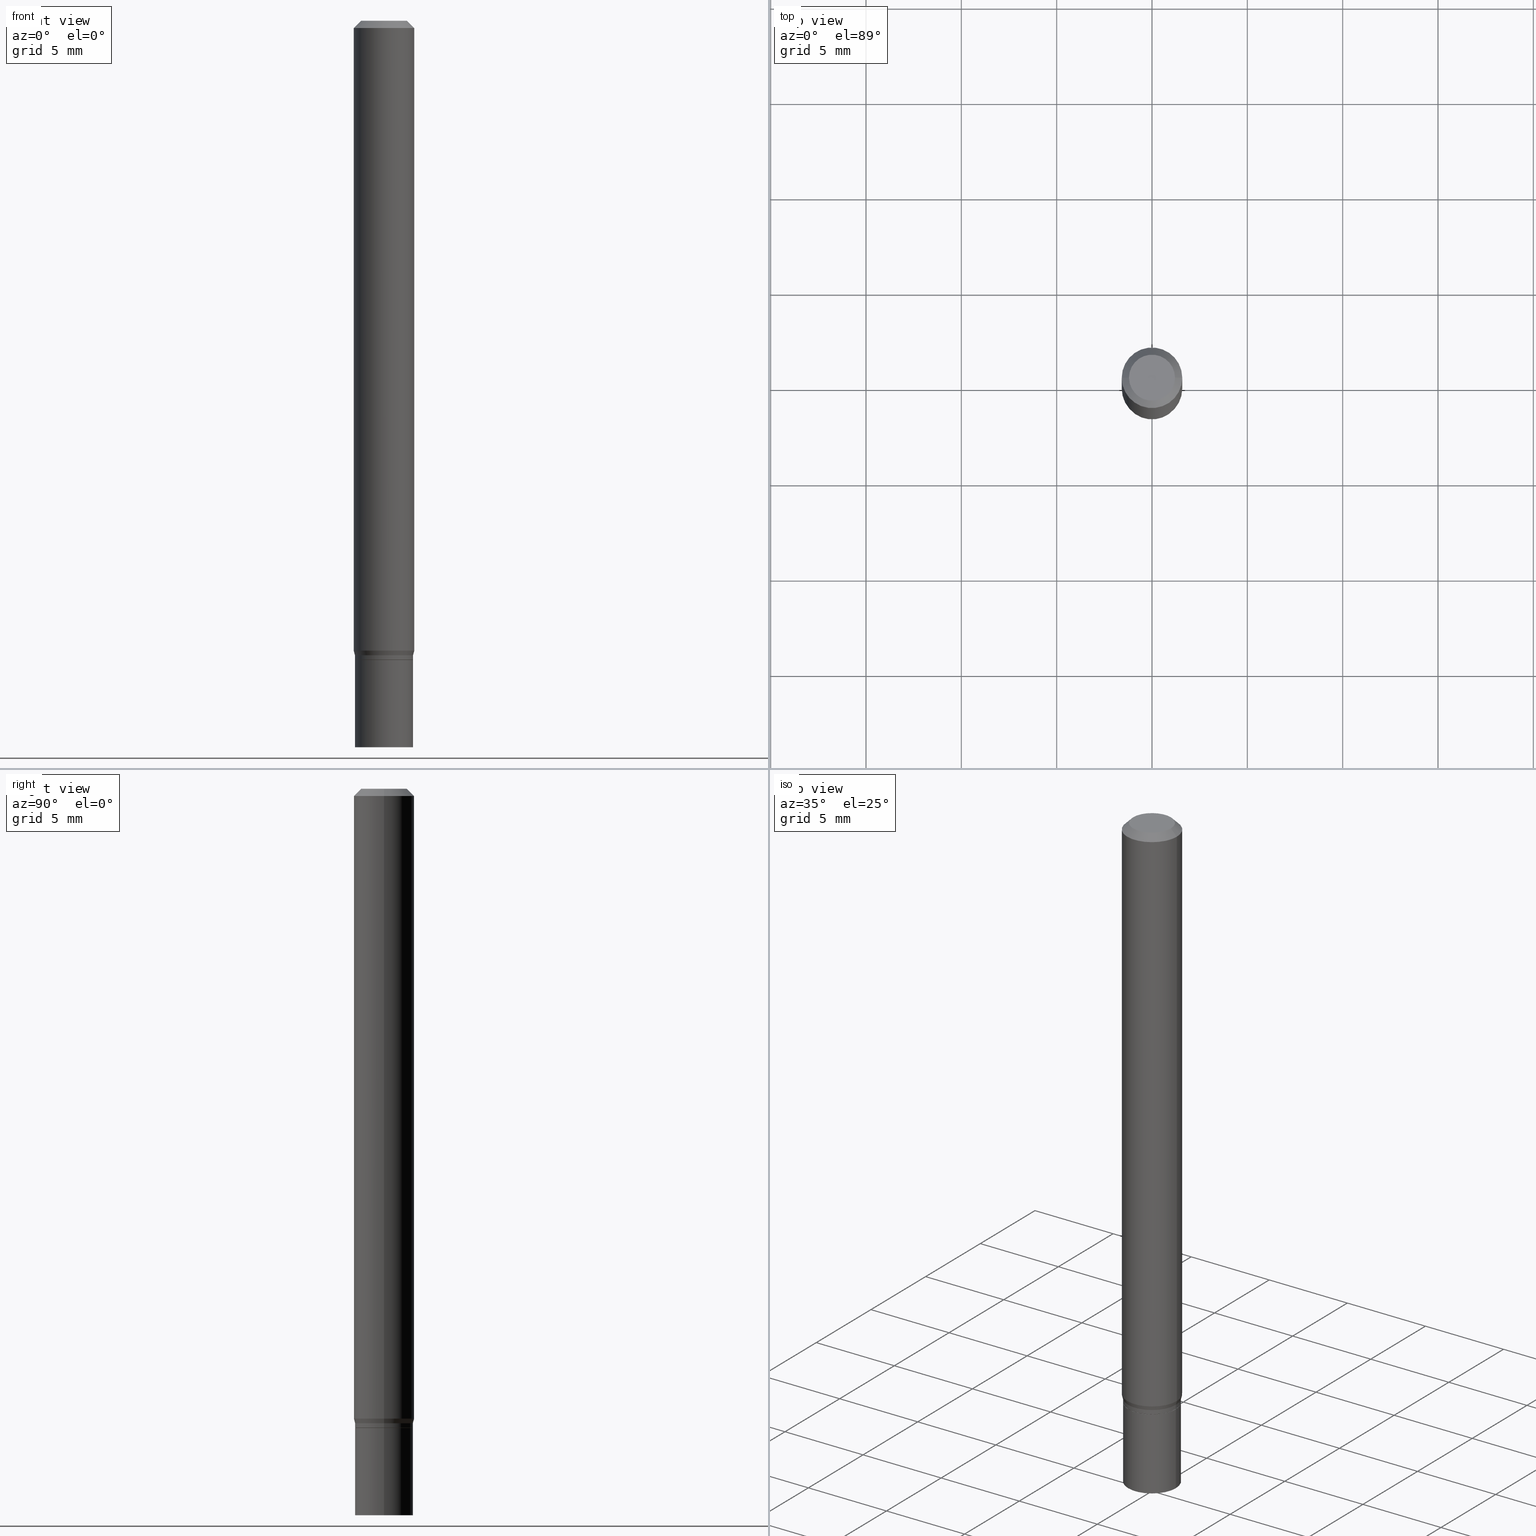
[diagram: canonical four-view strip — front | top / right | iso, engineering-drawing reading convention]
A machine part, canonical four-view strip (front | top / right | iso — engineering-drawing reading convention). The complete STEP part file that produces these views, byte-faithful:
ISO-10303-21;
HEADER;
FILE_DESCRIPTION (( 'STEP AP203' ),
    '1' );
FILE_NAME ('01155.STEP',
    '2024-03-19T23:27:22',
    ( '' ),
    ( '' ),
    'SwSTEP 2.0',
    'SolidWorks 2023',
    '' );
FILE_SCHEMA (( 'CONFIG_CONTROL_DESIGN' ));
ENDSEC;

DATA;
#1 = DATE_AND_TIME ( #244, #356 ) ;
#2 = VERTEX_POINT ( 'NONE', #66 ) ;
#3 = CARTESIAN_POINT ( 'NONE',  ( 3.668203209277705088E-31, -5.237222008264718399E-17, -0.01499999999999999944 ) ) ;
#4 = CARTESIAN_POINT ( 'NONE',  ( 3.203564136102529457E-29, -4.573840553884521577E-15, -1.310000000000000275 ) ) ;
#5 = VECTOR ( 'NONE', #364, 39.37007874015748143 ) ;
#6 = ADVANCED_FACE ( 'NONE', ( #215 ), #238, .T. ) ;
#7 = DIRECTION ( 'NONE',  ( 2.445468806185136597E-29, -3.491481338843145583E-15, -1.000000000000000000 ) ) ;
#8 = CARTESIAN_POINT ( 'NONE',  ( 0.000000000000000000, 0.000000000000000000, 0.000000000000000000 ) ) ;
#9 = FACE_OUTER_BOUND ( 'NONE', #414, .T. ) ;
#10 = CIRCLE ( 'NONE', #137, 0.05999999999999999778 ) ;
#11 = CONICAL_SURFACE ( 'NONE', #369, 0.06000000000000018513, 0.2617993877991257601 ) ;
#12 = CARTESIAN_POINT ( 'NONE',  ( 0.05949999999999999734, -5.024241646595285275E-15, -1.320000000000000062 ) ) ;
#13 = ORIENTED_EDGE ( 'NONE', *, *, #353, .F. ) ;
#14 = DIRECTION ( 'NONE',  ( 1.000000000000000000, -6.982962677686267499E-15, 4.852736867747366768E-29 ) ) ;
#15 = EDGE_CURVE ( 'NONE', #50, #205, #10, .T. ) ;
#16 = EDGE_LOOP ( 'NONE', ( #47, #343, #194, #451 ) ) ;
#17 =( CONVERSION_BASED_UNIT ( 'INCH', #118 ) LENGTH_UNIT ( ) NAMED_UNIT ( #281 ) );
#18 = ORIENTED_EDGE ( 'NONE', *, *, #254, .T. ) ;
#19 = DIRECTION ( 'NONE',  ( 1.000000000000000000, -6.982962677686262766E-15, 0.000000000000000000 ) ) ;
#20 = VERTEX_POINT ( 'NONE', #283 ) ;
#21 = DIRECTION ( 'NONE',  ( -2.445468806185136597E-29, 3.491481338843145583E-15, 1.000000000000000000 ) ) ;
#22 = ORIENTED_EDGE ( 'NONE', *, *, #315, .T. ) ;
#23 = ORIENTED_EDGE ( 'NONE', *, *, #15, .F. ) ;
#24 = CIRCLE ( 'NONE', #443, 0.06250000000000000000 ) ;
#25 = APPROVAL_STATUS ( 'not_yet_approved' ) ;
#26 = APPROVAL_PERSON_ORGANIZATION ( #63, #306, #242 ) ;
#27 = DIRECTION ( 'NONE',  ( -2.445468806185136597E-29, 3.491481338843145583E-15, 1.000000000000000000 ) ) ;
#28 = DIRECTION ( 'NONE',  ( 1.000000000000000000, -6.982962677686259611E-15, 0.000000000000000000 ) ) ;
#29 = APPROVAL_ROLE ( '' ) ;
#30 = CARTESIAN_POINT ( 'NONE',  ( 0.000000000000000000, 0.000000000000000000, 0.000000000000000000 ) ) ;
#31 = APPROVAL_DATE_TIME ( #1, #306 ) ;
#32 = AXIS2_PLACEMENT_3D ( 'NONE', #4, #110, #108 ) ;
#33 = LINE ( 'NONE', #93, #201 ) ;
#34 = CARTESIAN_POINT ( 'NONE',  ( -0.06000000000000018513, -4.147514912428460298E-15, -1.310000000000000275 ) ) ;
#35 = EDGE_CURVE ( 'NONE', #91, #421, #399, .T. ) ;
#36 = CARTESIAN_POINT ( 'NONE',  ( 3.228018824164380442E-29, -4.608755367272952437E-15, -1.320000000000000062 ) ) ;
#37 = ORIENTED_EDGE ( 'NONE', *, *, #320, .T. ) ;
#38 = DIRECTION ( 'NONE',  ( -2.438088387897960049E-29, 3.491481338843145188E-15, 1.000000000000000000 ) ) ;
#39 = AXIS2_PLACEMENT_3D ( 'NONE', #8, #147, #144 ) ;
#40 = LOCAL_TIME ( 19, 27, 22.00000000000000000, #351 ) ;
#41 = CARTESIAN_POINT ( 'NONE',  ( 3.180747601520009606E-29, -4.541264589508918231E-15, -1.300669872981077946 ) ) ;
#42 = EDGE_CURVE ( 'NONE', #159, #425, #243, .T. ) ;
#43 = DIRECTION ( 'NONE',  ( 1.000000000000000000, -6.982962677686262766E-15, 0.000000000000000000 ) ) ;
#44 = DIRECTION ( 'NONE',  ( -2.445468806185136597E-29, 3.491481338843145583E-15, 1.000000000000000000 ) ) ;
#45 = ADVANCED_FACE ( 'NONE', ( #390 ), #70, .T. ) ;
#46 = LINE ( 'NONE', #239, #222 ) ;
#47 = ORIENTED_EDGE ( 'NONE', *, *, #48, .F. ) ;
#48 = EDGE_CURVE ( 'NONE', #88, #159, #33, .T. ) ;
#49 = CARTESIAN_POINT ( 'NONE',  ( 3.316907271900976096E-16, 0.04749999999999999362, -2.653275547260257586E-16 ) ) ;
#50 = VERTEX_POINT ( 'NONE', #64 ) ;
#51 = CARTESIAN_POINT ( 'NONE',  ( 4.189777606612082375E-16, 0.05999999999999539035, -1.320000000000000506 ) ) ;
#52 = ORIENTED_EDGE ( 'NONE', *, *, #180, .F. ) ;
#53 = CLOSED_SHELL ( 'NONE', ( #119, #219, #141, #389 ) ) ;
#54 = ORGANIZATION ( 'UNSPECIFIED', 'UNSPECIFIED', '' ) ;
#55 = DIRECTION ( 'NONE',  ( -0.7071067811865522357, 2.468850131082306364E-15, -0.7071067811865427988 ) ) ;
#56 = ORIENTED_EDGE ( 'NONE', *, *, #164, .F. ) ;
#57 = PERSON_AND_ORGANIZATION ( #100, #54 ) ;
#58 = ORIENTED_EDGE ( 'NONE', *, *, #231, .F. ) ;
#59 = PERSON_AND_ORGANIZATION ( #100, #54 ) ;
#60 = LINE ( 'NONE', #316, #193 ) ;
#61 = AXIS2_PLACEMENT_3D ( 'NONE', #292, #332, #442 ) ;
#62 = ADVANCED_FACE ( 'NONE', ( #106 ), #287, .T. ) ;
#63 = PERSON_AND_ORGANIZATION ( #100, #54 ) ;
#64 = CARTESIAN_POINT ( 'NONE',  ( -0.05999999999999999778, -4.496663046312775211E-15, -1.320000000000000062 ) ) ;
#65 = APPROVAL_DATE_TIME ( #391, #269 ) ;
#66 = CARTESIAN_POINT ( 'NONE',  ( 0.06000000000000018513, -4.992818314545699000E-15, -1.310000000000000275 ) ) ;
#67 = COORDINATED_UNIVERSAL_TIME_OFFSET ( 5, 0, .BEHIND. ) ;
#68 = DIRECTION ( 'NONE',  ( -2.445468806185136597E-29, 3.491481338843145583E-15, 1.000000000000000000 ) ) ;
#69 = AXIS2_PLACEMENT_3D ( 'NONE', #79, #223, #370 ) ;
#70 = CYLINDRICAL_SURFACE ( 'NONE', #407, 0.06000000000000006023 ) ;
#71 = AXIS2_PLACEMENT_3D ( 'NONE', #90, #21, #422 ) ;
#72 = EDGE_CURVE ( 'NONE', #184, #50, #251, .T. ) ;
#73 = CARTESIAN_POINT ( 'NONE',  ( 3.226796089761288762E-29, -4.607009626603530934E-15, -1.319500000000000117 ) ) ;
#74 = DIRECTION ( 'NONE',  ( -2.445468806185136877E-29, 3.491481338843145188E-15, 1.000000000000000000 ) ) ;
#75 = LINE ( 'NONE', #440, #97 ) ;
#76 = AXIS2_PLACEMENT_3D ( 'NONE', #459, #27, #170 ) ;
#77 = FACE_OUTER_BOUND ( 'NONE', #84, .T. ) ;
#78 = EDGE_LOOP ( 'NONE', ( #268, #378, #345, #461 ) ) ;
#79 = CARTESIAN_POINT ( 'NONE',  ( 3.668203209277704895E-29, -5.237222008264718177E-15, -1.500000000000000222 ) ) ;
#80 = DIRECTION ( 'NONE',  ( -2.445468806185136597E-29, 3.491481338843145583E-15, 1.000000000000000000 ) ) ;
#81 = ORIENTED_EDGE ( 'NONE', *, *, #241, .F. ) ;
#82 = CIRCLE ( 'NONE', #230, 0.05949999999999999734 ) ;
#83 = CARTESIAN_POINT ( 'NONE',  ( 0.000000000000000000, 0.000000000000000000, 0.000000000000000000 ) ) ;
#84 = EDGE_LOOP ( 'NONE', ( #302, #348, #295, #52 ) ) ;
#85 = EDGE_CURVE ( 'NONE', #122, #88, #363, .T. ) ;
#86 = ORIENTED_EDGE ( 'NONE', *, *, #445, .F. ) ;
#87 = CARTESIAN_POINT ( 'NONE',  ( 3.203564136102529457E-29, -4.573840553884521577E-15, -1.310000000000000275 ) ) ;
#88 = VERTEX_POINT ( 'NONE', #133 ) ;
#89 = CIRCLE ( 'NONE', #146, 0.05949999999999999734 ) ;
#90 = CARTESIAN_POINT ( 'NONE',  ( 3.668203209277704895E-29, -5.237222008264718177E-15, -1.500000000000000222 ) ) ;
#91 = VERTEX_POINT ( 'NONE', #463 ) ;
#92 = DIRECTION ( 'NONE',  ( 0.000000000000000000, 0.000000000000000000, 1.000000000000000000 ) ) ;
#93 = CARTESIAN_POINT ( 'NONE',  ( -0.06000000000000006023, 4.263256414560605395E-16, -2.951361054152946216E-30 ) ) ;
#94 = APPROVAL ( #359, 'UNSPECIFIED' ) ;
#95 = EDGE_CURVE ( 'NONE', #425, #293, #107, .T. ) ;
#96 = DIRECTION ( 'NONE',  ( 1.000000000000000000, -6.982962677686267499E-15, 4.876176775795936353E-29 ) ) ;
#97 = VECTOR ( 'NONE', #257, 39.37007874015747433 ) ;
#98 = COORDINATED_UNIVERSAL_TIME_OFFSET ( 5, 0, .BEHIND. ) ;
#99 = DIRECTION ( 'NONE',  ( -2.445468806185136597E-29, 3.491481338843145583E-15, 1.000000000000000000 ) ) ;
#100 = PERSON ( 'UNSPECIFIED', 'UNSPECIFIED', 'UNSPECIFIED', ('UNSPECIFIED'), ('UNSPECIFIED'), ('UNSPECIFIED') ) ;
#101 = CC_DESIGN_PERSON_AND_ORGANIZATION_ASSIGNMENT ( #314, #464, ( #324 ) ) ;
#102 = APPROVAL_DATE_TIME ( #432, #94 ) ;
#103 = CARTESIAN_POINT ( 'NONE',  ( 0.000000000000000000, 0.000000000000000000, 0.000000000000000000 ) ) ;
#104 = SHAPE_DEFINITION_REPRESENTATION ( #191, #211 ) ;
#105 = EDGE_CURVE ( 'NONE', #2, #159, #312, .T. ) ;
#106 = FACE_OUTER_BOUND ( 'NONE', #355, .T. ) ;
#107 = CIRCLE ( 'NONE', #449, 0.06250000000000000000 ) ;
#108 = DIRECTION ( 'NONE',  ( 1.000000000000000000, -6.982962677686262766E-15, 0.000000000000000000 ) ) ;
#109 = LOCAL_TIME ( 19, 27, 22.00000000000000000, #208 ) ;
#110 = DIRECTION ( 'NONE',  ( -2.445468806185136597E-29, 3.491481338843145583E-15, 1.000000000000000000 ) ) ;
#111 = MANIFOLD_SOLID_BREP ( 'Body-Move/Copy2[2]', #346 ) ;
#112 = DIRECTION ( 'NONE',  ( 1.000000000000000000, -6.982962677686259611E-15, 0.000000000000000000 ) ) ;
#113 = ORIENTED_EDGE ( 'NONE', *, *, #95, .F. ) ;
#114 = EDGE_CURVE ( 'NONE', #122, #2, #60, .T. ) ;
#115 = DIRECTION ( 'NONE',  ( 1.000000000000000000, -6.982962677686261189E-15, 0.000000000000000000 ) ) ;
#116 = AXIS2_PLACEMENT_3D ( 'NONE', #371, #185, #112 ) ;
#117 = CARTESIAN_POINT ( 'NONE',  ( 0.000000000000000000, 0.000000000000000000, 0.000000000000000000 ) ) ;
#118 = LENGTH_MEASURE_WITH_UNIT ( LENGTH_MEASURE( 0.02539999999999999897 ), #236 );
#119 = ADVANCED_FACE ( 'NONE', ( #279 ), #360, .T. ) ;
#120 = ORIENTED_EDGE ( 'NONE', *, *, #72, .T. ) ;
#121 = DIRECTION ( 'NONE',  ( 1.000000000000000000, -6.982962677686259611E-15, 0.000000000000000000 ) ) ;
#122 = VERTEX_POINT ( 'NONE', #172 ) ;
#123 = VECTOR ( 'NONE', #225, 39.37007874015748143 ) ;
#124 = ORIENTED_EDGE ( 'NONE', *, *, #255, .F. ) ;
#125 = VERTEX_POINT ( 'NONE', #136 ) ;
#126 = ADVANCED_FACE ( 'NONE', ( #325 ), #323, .T. ) ;
#127 = ADVANCED_FACE ( 'NONE', ( #77 ), #336, .T. ) ;
#128 = FACE_OUTER_BOUND ( 'NONE', #78, .T. ) ;
#129 = ORIENTED_EDGE ( 'NONE', *, *, #105, .F. ) ;
#130 = CONICAL_SURFACE ( 'NONE', #167, 0.06250000000000000000, 0.7853981633974549403 ) ;
#131 = LOCAL_TIME ( 19, 27, 22.00000000000000000, #210 ) ;
#132 = ADVANCED_FACE ( 'NONE', ( #256 ), #130, .T. ) ;
#133 = CARTESIAN_POINT ( 'NONE',  ( -0.05999999999999992145, -4.180683985147472021E-15, -1.319500000000000117 ) ) ;
#134 = DIRECTION ( 'NONE',  ( -2.445468806185136597E-29, 3.491481338843145583E-15, 1.000000000000000000 ) ) ;
#135 = CALENDAR_DATE ( 2024, 19, 3 ) ;
#136 = CARTESIAN_POINT ( 'NONE',  ( -0.06250000000000000000, -1.852729194945719842E-15, -0.01499999999999999944 ) ) ;
#137 = AXIS2_PLACEMENT_3D ( 'NONE', #207, #427, #322 ) ;
#138 = AXIS2_PLACEMENT_3D ( 'NONE', #192, #80, #14 ) ;
#139 = CALENDAR_DATE ( 2024, 19, 3 ) ;
#140 = CARTESIAN_POINT ( 'NONE',  ( 3.228018824164380442E-29, -4.608755367272952437E-15, -1.320000000000000062 ) ) ;
#141 = ADVANCED_FACE ( 'NONE', ( #150 ), #188, .T. ) ;
#142 = APPROVAL_ROLE ( '' ) ;
#143 = ORIENTED_EDGE ( 'NONE', *, *, #164, .T. ) ;
#144 = DIRECTION ( 'NONE',  ( 1.000000000000000000, -6.982962677686266711E-15, 4.876176775795935793E-29 ) ) ;
#145 = VECTOR ( 'NONE', #401, 39.37007874015748143 ) ;
#146 = AXIS2_PLACEMENT_3D ( 'NONE', #36, #183, #291 ) ;
#147 = DIRECTION ( 'NONE',  ( -2.445468806185136597E-29, 3.491481338843145583E-15, 1.000000000000000000 ) ) ;
#148 = CC_DESIGN_SECURITY_CLASSIFICATION ( #324, ( #331 ) ) ;
#149 = EDGE_CURVE ( 'NONE', #20, #125, #439, .T. ) ;
#150 = FACE_OUTER_BOUND ( 'NONE', #305, .T. ) ;
#151 = EDGE_CURVE ( 'NONE', #293, #425, #24, .T. ) ;
#152 = CARTESIAN_POINT ( 'NONE',  ( 0.05949999999999999734, -5.024241646595285275E-15, -1.320000000000000062 ) ) ;
#153 = ORIENTED_EDGE ( 'NONE', *, *, #165, .F. ) ;
#154 = PLANE ( 'NONE',  #429 ) ;
#155 = LINE ( 'NONE', #299, #284 ) ;
#156 = CARTESIAN_POINT ( 'NONE',  ( 3.668203209277705088E-31, -5.237222008264718399E-17, -0.01499999999999999944 ) ) ;
#157 = ORIENTED_EDGE ( 'NONE', *, *, #341, .T. ) ;
#158 = DIRECTION ( 'NONE',  ( -1.000000000000000000, 6.982962677686265922E-15, -4.876176775795935793E-29 ) ) ;
#159 = VERTEX_POINT ( 'NONE', #334 ) ;
#160 = VECTOR ( 'NONE', #74, 39.37007874015748143 ) ;
#161 = EDGE_LOOP ( 'NONE', ( #260, #157 ) ) ;
#162 = CARTESIAN_POINT ( 'NONE',  ( 3.203564136102529457E-29, -4.573840553884521577E-15, -1.310000000000000275 ) ) ;
#163 = VERTEX_POINT ( 'NONE', #404 ) ;
#164 = EDGE_CURVE ( 'NONE', #293, #20, #365, .T. ) ;
#165 = EDGE_CURVE ( 'NONE', #425, #125, #405, .T. ) ;
#166 = ORIENTED_EDGE ( 'NONE', *, *, #15, .T. ) ;
#167 = AXIS2_PLACEMENT_3D ( 'NONE', #3, #7, #220 ) ;
#168 =( GEOMETRIC_REPRESENTATION_CONTEXT ( 3 ) GLOBAL_UNCERTAINTY_ASSIGNED_CONTEXT ( ( #434 ) ) GLOBAL_UNIT_ASSIGNED_CONTEXT ( ( #17, #420, #426 ) ) REPRESENTATION_CONTEXT ( 'NONE', 'WORKASPACE' ) );
#169 = CALENDAR_DATE ( 2024, 19, 3 ) ;
#170 = DIRECTION ( 'NONE',  ( 1.000000000000000000, -6.982962677686267499E-15, 4.852736867747366768E-29 ) ) ;
#171 = SECURITY_CLASSIFICATION_LEVEL ( 'unclassified' ) ;
#172 = CARTESIAN_POINT ( 'NONE',  ( 0.05999999999999992145, -5.025987387264705990E-15, -1.319500000000000117 ) ) ;
#173 = EDGE_CURVE ( 'NONE', #88, #122, #330, .T. ) ;
#174 = DIRECTION ( 'NONE',  ( 1.000000000000000000, 0.000000000000000000, 0.000000000000000000 ) ) ;
#175 = DIRECTION ( 'NONE',  ( -2.445468806185136877E-29, 3.491481338843145188E-15, 1.000000000000000000 ) ) ;
#176 = ADVANCED_FACE ( 'NONE', ( #298 ), #288, .T. ) ;
#177 = CIRCLE ( 'NONE', #195, 0.06000000000000018513 ) ;
#178 = CALENDAR_DATE ( 2024, 19, 3 ) ;
#179 = DIRECTION ( 'NONE',  ( 1.000000000000000000, -6.982962677686266711E-15, 4.876176775795935232E-29 ) ) ;
#180 = EDGE_CURVE ( 'NONE', #436, #122, #294, .T. ) ;
#181 = CARTESIAN_POINT ( 'NONE',  ( -0.05999999999999999778, 4.263256414560600957E-16, -2.951361054152943413E-30 ) ) ;
#182 = CC_DESIGN_PERSON_AND_ORGANIZATION_ASSIGNMENT ( #357, #460, ( #331 ) ) ;
#183 = DIRECTION ( 'NONE',  ( -2.445468806185136597E-29, 3.491481338843145583E-15, 1.000000000000000000 ) ) ;
#184 = VERTEX_POINT ( 'NONE', #373 ) ;
#185 = DIRECTION ( 'NONE',  ( -2.445468806185136597E-29, 3.491481338843145583E-15, 1.000000000000000000 ) ) ;
#186 = ORIENTED_EDGE ( 'NONE', *, *, #241, .T. ) ;
#187 = PRODUCT ( '01155', '01155', '', ( #250 ) ) ;
#188 = CYLINDRICAL_SURFACE ( 'NONE', #263, 0.05999999999999999778 ) ;
#189 = ORIENTED_EDGE ( 'NONE', *, *, #326, .T. ) ;
#190 = DIRECTION ( 'NONE',  ( -2.445468806185136597E-29, 3.491481338843145583E-15, 1.000000000000000000 ) ) ;
#191 = PRODUCT_DEFINITION_SHAPE ( 'NONE', 'NONE',  #437 ) ;
#192 = CARTESIAN_POINT ( 'NONE',  ( 4.865611903635008365E-45, -6.946804277620623666E-31, -1.989643822619527736E-16 ) ) ;
#193 = VECTOR ( 'NONE', #175, 39.37007874015748143 ) ;
#194 = ORIENTED_EDGE ( 'NONE', *, *, #114, .T. ) ;
#195 = AXIS2_PLACEMENT_3D ( 'NONE', #162, #379, #342 ) ;
#196 = CARTESIAN_POINT ( 'NONE',  ( -0.05949999999999999734, -4.183333212321582433E-15, -1.320000000000000062 ) ) ;
#197 = ORIENTED_EDGE ( 'NONE', *, *, #326, .F. ) ;
#198 = ORIENTED_EDGE ( 'NONE', *, *, #149, .T. ) ;
#199 = DIRECTION ( 'NONE',  ( -2.445468806185136597E-29, 3.491481338843145583E-15, 1.000000000000000000 ) ) ;
#200 = ORIENTED_EDGE ( 'NONE', *, *, #353, .T. ) ;
#201 = VECTOR ( 'NONE', #319, 39.37007874015748143 ) ;
#202 = CC_DESIGN_APPROVAL ( #94, ( #324 ) ) ;
#203 = FACE_OUTER_BOUND ( 'NONE', #161, .T. ) ;
#204 = ORIENTED_EDGE ( 'NONE', *, *, #151, .T. ) ;
#205 = VERTEX_POINT ( 'NONE', #446 ) ;
#206 = DATE_AND_TIME ( #135, #40 ) ;
#207 = CARTESIAN_POINT ( 'NONE',  ( 3.228018824164380442E-29, -4.608755367272952437E-15, -1.320000000000000062 ) ) ;
#208 = COORDINATED_UNIVERSAL_TIME_OFFSET ( 5, 0, .BEHIND. ) ;
#209 = DIRECTION ( 'NONE',  ( -2.445468806185136597E-29, 3.491481338843145583E-15, 1.000000000000000000 ) ) ;
#210 = COORDINATED_UNIVERSAL_TIME_OFFSET ( 5, 0, .BEHIND. ) ;
#211 = ADVANCED_BREP_SHAPE_REPRESENTATION ( '01155', ( #266, #111, #313 ), #168 ) ;
#212 = CARTESIAN_POINT ( 'NONE',  ( 3.203564136102529457E-29, -4.573840553884521577E-15, -1.310000000000000275 ) ) ;
#213 = DIRECTION ( 'NONE',  ( -1.000000000000000000, 6.982962677686266711E-15, 0.000000000000000000 ) ) ;
#214 = AXIS2_PLACEMENT_3D ( 'NONE', #83, #234, #304 ) ;
#215 = FACE_OUTER_BOUND ( 'NONE', #352, .T. ) ;
#216 = APPLICATION_CONTEXT ( 'configuration controlled 3d designs of mechanical parts and assemblies' ) ;
#217 = EDGE_CURVE ( 'NONE', #163, #205, #327, .T. ) ;
#218 = DIRECTION ( 'NONE',  ( 1.000000000000000000, -6.982962677686267499E-15, 4.876176775795936353E-29 ) ) ;
#219 = ADVANCED_FACE ( 'NONE', ( #9 ), #154, .F. ) ;
#220 = DIRECTION ( 'NONE',  ( -1.000000000000000000, 6.982962677686266711E-15, 0.000000000000000000 ) ) ;
#221 = AXIS2_PLACEMENT_3D ( 'NONE', #227, #375, #418 ) ;
#222 = VECTOR ( 'NONE', #264, 39.37007874015748143 ) ;
#223 = DIRECTION ( 'NONE',  ( -2.445468806185136597E-29, 3.491481338843145583E-15, 1.000000000000000000 ) ) ;
#224 = ADVANCED_FACE ( 'NONE', ( #261 ), #296, .T. ) ;
#225 = DIRECTION ( 'NONE',  ( -2.445468806185136877E-29, 3.491481338843145188E-15, 1.000000000000000000 ) ) ;
#226 = CARTESIAN_POINT ( 'NONE',  ( 0.06250000000000000000, -4.364351673553916694E-16, 3.047610484872459871E-30 ) ) ;
#227 = CARTESIAN_POINT ( 'NONE',  ( 3.228018824164380442E-29, -4.608755367272952437E-15, -1.320000000000000062 ) ) ;
#228 = AXIS2_PLACEMENT_3D ( 'NONE', #249, #397, #213 ) ;
#229 = ORIENTED_EDGE ( 'NONE', *, *, #85, .T. ) ;
#230 = AXIS2_PLACEMENT_3D ( 'NONE', #450, #454, #121 ) ;
#231 = EDGE_CURVE ( 'NONE', #271, #88, #441, .T. ) ;
#232 = FACE_OUTER_BOUND ( 'NONE', #411, .T. ) ;
#233 = EDGE_LOOP ( 'NONE', ( #333, #189, #198, #237 ) ) ;
#234 = DIRECTION ( 'NONE',  ( -2.445468806185136597E-29, 3.491481338843145583E-15, 1.000000000000000000 ) ) ;
#235 = ORIENTED_EDGE ( 'NONE', *, *, #42, .F. ) ;
#236 =( LENGTH_UNIT ( ) NAMED_UNIT ( * ) SI_UNIT ( $, .METRE. ) );
#237 = ORIENTED_EDGE ( 'NONE', *, *, #315, .F. ) ;
#238 = CONICAL_SURFACE ( 'NONE', #252, 0.05949999999999999734, 0.7853981633974739252 ) ;
#239 = CARTESIAN_POINT ( 'NONE',  ( 0.06250000000000000000, -4.811533449433679005E-16, -0.01499999999999999944 ) ) ;
#240 = EDGE_LOOP ( 'NONE', ( #229, #380, #129, #385 ) ) ;
#241 = EDGE_CURVE ( 'NONE', #271, #436, #89, .T. ) ;
#242 = APPROVAL_ROLE ( '' ) ;
#243 = LINE ( 'NONE', #34, #456 ) ;
#244 = CALENDAR_DATE ( 2024, 19, 3 ) ;
#245 = DIRECTION ( 'NONE',  ( 1.000000000000000000, -6.982962677686266711E-15, 4.876176775795935793E-29 ) ) ;
#246 = PERSON_AND_ORGANIZATION ( #100, #54 ) ;
#247 = CARTESIAN_POINT ( 'NONE',  ( 3.226796089761288762E-29, -4.607009626603530934E-15, -1.319500000000000117 ) ) ;
#248 = CARTESIAN_POINT ( 'NONE',  ( 0.000000000000000000, 0.000000000000000000, 0.000000000000000000 ) ) ;
#249 = CARTESIAN_POINT ( 'NONE',  ( 3.668203209277705088E-31, -5.237222008264718399E-17, -0.01499999999999999944 ) ) ;
#250 = MECHANICAL_CONTEXT ( 'NONE', #339, 'mechanical' ) ;
#251 = LINE ( 'NONE', #181, #5 ) ;
#252 = AXIS2_PLACEMENT_3D ( 'NONE', #140, #285, #28 ) ;
#253 = DIRECTION ( 'NONE',  ( -2.445468806185136877E-29, 3.491481338843145188E-15, 1.000000000000000000 ) ) ;
#254 = EDGE_CURVE ( 'NONE', #2, #293, #75, .T. ) ;
#255 = EDGE_CURVE ( 'NONE', #163, #184, #368, .T. ) ;
#256 = FACE_OUTER_BOUND ( 'NONE', #233, .T. ) ;
#257 = DIRECTION ( 'NONE',  ( 0.2588190451024979244, 1.565188264969808139E-15, 0.9659258262890745295 ) ) ;
#258 = AXIS2_PLACEMENT_3D ( 'NONE', #49, #307, #309 ) ;
#259 = DIRECTION ( 'NONE',  ( 0.7071067811865656694, -2.468850131082446387E-15, 0.7071067811865294761 ) ) ;
#260 = ORIENTED_EDGE ( 'NONE', *, *, #35, .T. ) ;
#261 = FACE_OUTER_BOUND ( 'NONE', #265, .T. ) ;
#262 = EDGE_LOOP ( 'NONE', ( #419, #120, #310, #453 ) ) ;
#263 = AXIS2_PLACEMENT_3D ( 'NONE', #117, #190, #218 ) ;
#264 = DIRECTION ( 'NONE',  ( 0.7071067811865522357, -7.319954787623271823E-15, -0.7071067811865427988 ) ) ;
#265 = EDGE_LOOP ( 'NONE', ( #235, #406, #18, #113 ) ) ;
#266 = MANIFOLD_SOLID_BREP ( 'Body-Move/Copy2[1]', #53 ) ;
#267 = DIRECTION ( 'NONE',  ( -2.445468806185136597E-29, 3.491481338843145583E-15, 1.000000000000000000 ) ) ;
#268 = ORIENTED_EDGE ( 'NONE', *, *, #105, .T. ) ;
#269 = APPROVAL ( #25, 'UNSPECIFIED' ) ;
#270 = PLANE ( 'NONE',  #408 ) ;
#271 = VERTEX_POINT ( 'NONE', #196 ) ;
#272 = CARTESIAN_POINT ( 'NONE',  ( 0.06250000000000000000, -4.977699756864309111E-15, -1.300669872981077946 ) ) ;
#273 = ORIENTED_EDGE ( 'NONE', *, *, #320, .F. ) ;
#274 = VECTOR ( 'NONE', #253, 39.37007874015748143 ) ;
#275 = LOCAL_TIME ( 19, 27, 22.00000000000000000, #67 ) ;
#276 = CC_DESIGN_PERSON_AND_ORGANIZATION_ASSIGNMENT ( #321, #462, ( #331 ) ) ;
#277 = DIRECTION ( 'NONE',  ( 1.000000000000000000, -6.982962677686262766E-15, 0.000000000000000000 ) ) ;
#278 = PERSON_AND_ORGANIZATION_ROLE ( 'creator' ) ;
#279 = FACE_OUTER_BOUND ( 'NONE', #262, .T. ) ;
#280 = ADVANCED_FACE ( 'NONE', ( #413 ), #424, .F. ) ;
#281 = DIMENSIONAL_EXPONENTS ( 1.000000000000000000, 0.000000000000000000, 0.000000000000000000, 0.000000000000000000, 0.000000000000000000, 0.000000000000000000, 0.000000000000000000 ) ;
#282 = DATE_TIME_ROLE ( 'classification_date' ) ;
#283 = CARTESIAN_POINT ( 'NONE',  ( 0.06250000000000000000, -4.888073874380388472E-16, -0.01499999999999999944 ) ) ;
#284 = VECTOR ( 'NONE', #55, 39.37007874015748143 ) ;
#285 = DIRECTION ( 'NONE',  ( -2.445468806185136597E-29, 3.491481338843145583E-15, 1.000000000000000000 ) ) ;
#286 = PERSON_AND_ORGANIZATION_ROLE ( 'design_owner' ) ;
#287 = CYLINDRICAL_SURFACE ( 'NONE', #416, 0.06250000000000000000 ) ;
#288 = CYLINDRICAL_SURFACE ( 'NONE', #39, 0.06250000000000000000 ) ;
#289 = AXIS2_PLACEMENT_3D ( 'NONE', #73, #335, #115 ) ;
#290 = CIRCLE ( 'NONE', #71, 0.05999999999999999778 ) ;
#291 = DIRECTION ( 'NONE',  ( 1.000000000000000000, -6.982962677686259611E-15, 0.000000000000000000 ) ) ;
#292 = CARTESIAN_POINT ( 'NONE',  ( 3.668203209277705088E-31, -5.237222008264718399E-17, -0.01499999999999999944 ) ) ;
#293 = VERTEX_POINT ( 'NONE', #272 ) ;
#294 = LINE ( 'NONE', #152, #303 ) ;
#295 = ORIENTED_EDGE ( 'NONE', *, *, #85, .F. ) ;
#296 = CONICAL_SURFACE ( 'NONE', #32, 0.06000000000000018513, 0.2617993877991257601 ) ;
#297 = APPROVAL_PERSON_ORGANIZATION ( #246, #94, #29 ) ;
#298 = FACE_OUTER_BOUND ( 'NONE', #387, .T. ) ;
#299 = CARTESIAN_POINT ( 'NONE',  ( -0.06250000000000000000, 3.840629472727444916E-16, -0.01499999999999999944 ) ) ;
#300 = ADVANCED_FACE ( 'NONE', ( #349 ), #382, .T. ) ;
#301 = CARTESIAN_POINT ( 'NONE',  ( 3.228018824164380442E-29, -4.608755367272952437E-15, -1.320000000000000062 ) ) ;
#302 = ORIENTED_EDGE ( 'NONE', *, *, #445, .T. ) ;
#303 = VECTOR ( 'NONE', #259, 39.37007874015748143 ) ;
#304 = DIRECTION ( 'NONE',  ( 1.000000000000000000, -6.982962677686266711E-15, 4.876176775795935232E-29 ) ) ;
#305 = EDGE_LOOP ( 'NONE', ( #430, #37, #455, #23 ) ) ;
#306 = APPROVAL ( #396, 'UNSPECIFIED' ) ;
#307 = DIRECTION ( 'NONE',  ( 2.438088387897960049E-29, -3.491481338843145188E-15, -1.000000000000000000 ) ) ;
#308 = ORIENTED_EDGE ( 'NONE', *, *, #173, .F. ) ;
#309 = DIRECTION ( 'NONE',  ( -1.000000000000000000, 6.982962677686265922E-15, -4.876176775795935793E-29 ) ) ;
#310 = ORIENTED_EDGE ( 'NONE', *, *, #403, .F. ) ;
#311 = EDGE_LOOP ( 'NONE', ( #86, #81 ) ) ;
#312 = CIRCLE ( 'NONE', #374, 0.06000000000000018513 ) ;
#313 = AXIS2_PLACEMENT_3D ( 'NONE', #248, #92, #174 ) ;
#314 = PERSON_AND_ORGANIZATION ( #100, #54 ) ;
#315 = EDGE_CURVE ( 'NONE', #91, #125, #155, .T. ) ;
#316 = CARTESIAN_POINT ( 'NONE',  ( 0.06000000000000006023, -4.189777606611764365E-16, 2.925706065477564208E-30 ) ) ;
#317 = DESIGN_CONTEXT ( 'detailed design', #216, 'design' ) ;
#318 = DATE_AND_TIME ( #178, #131 ) ;
#319 = DIRECTION ( 'NONE',  ( -2.445468806185136877E-29, 3.491481338843145188E-15, 1.000000000000000000 ) ) ;
#320 = EDGE_CURVE ( 'NONE', #184, #163, #290, .T. ) ;
#321 = PERSON_AND_ORGANIZATION ( #100, #54 ) ;
#322 = DIRECTION ( 'NONE',  ( 1.000000000000000000, -6.982962677686268288E-15, 0.000000000000000000 ) ) ;
#323 = CONICAL_SURFACE ( 'NONE', #228, 0.06250000000000000000, 0.7853981633974549403 ) ;
#324 = SECURITY_CLASSIFICATION ( '', '', #171 ) ;
#325 = FACE_OUTER_BOUND ( 'NONE', #402, .T. ) ;
#326 = EDGE_CURVE ( 'NONE', #421, #20, #46, .T. ) ;
#327 = LINE ( 'NONE', #410, #123 ) ;
#328 = CC_DESIGN_DATE_AND_TIME_ASSIGNMENT ( #318, #282, ( #324 ) ) ;
#329 = CARTESIAN_POINT ( 'NONE',  ( -0.06250000000000000000, 4.440892098500626162E-16, -3.074334431409316114E-30 ) ) ;
#330 = CIRCLE ( 'NONE', #289, 0.05999999999999992145 ) ;
#331 = PRODUCT_DEFINITION_FORMATION_WITH_SPECIFIED_SOURCE ( 'ANY', '', #187, .NOT_KNOWN. ) ;
#332 = DIRECTION ( 'NONE',  ( -2.445468806185136597E-29, 3.491481338843145583E-15, 1.000000000000000000 ) ) ;
#333 = ORIENTED_EDGE ( 'NONE', *, *, #341, .F. ) ;
#334 = CARTESIAN_POINT ( 'NONE',  ( -0.06000000000000018513, -4.122345146043657956E-15, -1.310000000000000275 ) ) ;
#335 = DIRECTION ( 'NONE',  ( -2.445468806185136597E-29, 3.491481338843145583E-15, 1.000000000000000000 ) ) ;
#336 = CONICAL_SURFACE ( 'NONE', #116, 0.05949999999999999734, 0.7853981633974739252 ) ;
#337 = CARTESIAN_POINT ( 'NONE',  ( -0.06250000000000000000, -4.097175379658855615E-15, -1.300669872981077946 ) ) ;
#338 = ORIENTED_EDGE ( 'NONE', *, *, #165, .T. ) ;
#339 = APPLICATION_CONTEXT ( 'configuration controlled 3d designs of mechanical parts and assemblies' ) ;
#340 = EDGE_CURVE ( 'NONE', #159, #2, #177, .T. ) ;
#341 = EDGE_CURVE ( 'NONE', #421, #91, #458, .T. ) ;
#342 = DIRECTION ( 'NONE',  ( 1.000000000000000000, -6.982962677686262766E-15, 0.000000000000000000 ) ) ;
#343 = ORIENTED_EDGE ( 'NONE', *, *, #173, .T. ) ;
#344 = PLANE ( 'NONE',  #258 ) ;
#345 = ORIENTED_EDGE ( 'NONE', *, *, #151, .F. ) ;
#346 = CLOSED_SHELL ( 'NONE', ( #45, #127, #132, #62, #457, #224, #176, #126, #384, #280, #6, #300 ) ) ;
#347 = DIRECTION ( 'NONE',  ( 1.000000000000000000, -6.982962677686266711E-15, 0.000000000000000000 ) ) ;
#348 = ORIENTED_EDGE ( 'NONE', *, *, #231, .T. ) ;
#349 = FACE_OUTER_BOUND ( 'NONE', #16, .T. ) ;
#350 = ORIENTED_EDGE ( 'NONE', *, *, #403, .T. ) ;
#351 = COORDINATED_UNIVERSAL_TIME_OFFSET ( 5, 0, .BEHIND. ) ;
#352 = EDGE_LOOP ( 'NONE', ( #58, #186, #367, #308 ) ) ;
#353 = EDGE_CURVE ( 'NONE', #125, #20, #393, .T. ) ;
#354 = PERSON_AND_ORGANIZATION ( #100, #54 ) ;
#355 = EDGE_LOOP ( 'NONE', ( #204, #338, #423, #56 ) ) ;
#356 = LOCAL_TIME ( 19, 27, 22.00000000000000000, #98 ) ;
#357 = PERSON_AND_ORGANIZATION ( #100, #54 ) ;
#358 = DIRECTION ( 'NONE',  ( -2.445468806185136597E-29, 3.491481338843145583E-15, 1.000000000000000000 ) ) ;
#359 = APPROVAL_STATUS ( 'not_yet_approved' ) ;
#360 = CYLINDRICAL_SURFACE ( 'NONE', #465, 0.05999999999999999778 ) ;
#361 = APPLICATION_PROTOCOL_DEFINITION ( 'international standard', 'config_control_design', 1994, #339 ) ;
#362 = DIRECTION ( 'NONE',  ( -0.2588190451024979244, 5.211531920934405891E-15, 0.9659258262890745295 ) ) ;
#363 = CIRCLE ( 'NONE', #381, 0.05999999999999992145 ) ;
#364 = DIRECTION ( 'NONE',  ( -2.445468806185136877E-29, 3.491481338843145188E-15, 1.000000000000000000 ) ) ;
#365 = LINE ( 'NONE', #226, #160 ) ;
#366 = CARTESIAN_POINT ( 'NONE',  ( 3.584916967085606921E-29, -5.356492647442320375E-15, -1.500000000000000222 ) ) ;
#367 = ORIENTED_EDGE ( 'NONE', *, *, #180, .T. ) ;
#368 = CIRCLE ( 'NONE', #69, 0.05999999999999999778 ) ;
#369 = AXIS2_PLACEMENT_3D ( 'NONE', #87, #377, #19 ) ;
#370 = DIRECTION ( 'NONE',  ( 1.000000000000000000, -6.982962677686268288E-15, 0.000000000000000000 ) ) ;
#371 = CARTESIAN_POINT ( 'NONE',  ( 3.228018824164380442E-29, -4.608755367272952437E-15, -1.320000000000000062 ) ) ;
#372 = CC_DESIGN_PERSON_AND_ORGANIZATION_ASSIGNMENT ( #59, #278, ( #437 ) ) ;
#373 = CARTESIAN_POINT ( 'NONE',  ( -0.05999999999999999778, -4.496663046312775211E-15, -1.500000000000000222 ) ) ;
#374 = AXIS2_PLACEMENT_3D ( 'NONE', #212, #358, #277 ) ;
#375 = DIRECTION ( 'NONE',  ( -2.438088387897960049E-29, 3.491481338843145188E-15, 1.000000000000000000 ) ) ;
#376 = ORIENTED_EDGE ( 'NONE', *, *, #35, .F. ) ;
#377 = DIRECTION ( 'NONE',  ( -2.445468806185136597E-29, 3.491481338843145583E-15, 1.000000000000000000 ) ) ;
#378 = ORIENTED_EDGE ( 'NONE', *, *, #42, .T. ) ;
#379 = DIRECTION ( 'NONE',  ( -2.445468806185136597E-29, 3.491481338843145583E-15, 1.000000000000000000 ) ) ;
#380 = ORIENTED_EDGE ( 'NONE', *, *, #48, .T. ) ;
#381 = AXIS2_PLACEMENT_3D ( 'NONE', #247, #209, #392 ) ;
#382 = CYLINDRICAL_SURFACE ( 'NONE', #214, 0.06000000000000006023 ) ;
#383 = CC_DESIGN_APPROVAL ( #306, ( #437 ) ) ;
#384 = ADVANCED_FACE ( 'NONE', ( #203 ), #344, .F. ) ;
#385 = ORIENTED_EDGE ( 'NONE', *, *, #114, .F. ) ;
#386 = DIRECTION ( 'NONE',  ( 2.438088387897960049E-29, -3.491481338843145188E-15, -1.000000000000000000 ) ) ;
#387 = EDGE_LOOP ( 'NONE', ( #153, #448, #143, #13 ) ) ;
#388 = CC_DESIGN_DATE_AND_TIME_ASSIGNMENT ( #206, #435, ( #437 ) ) ;
#389 = ADVANCED_FACE ( 'NONE', ( #232 ), #270, .F. ) ;
#390 = FACE_OUTER_BOUND ( 'NONE', #240, .T. ) ;
#391 = DATE_AND_TIME ( #169, #109 ) ;
#392 = DIRECTION ( 'NONE',  ( 1.000000000000000000, -6.982962677686261189E-15, 0.000000000000000000 ) ) ;
#393 = CIRCLE ( 'NONE', #466, 0.06250000000000000000 ) ;
#394 = APPLICATION_PROTOCOL_DEFINITION ( 'international standard', 'config_control_design', 1994, #216 ) ;
#395 = DIRECTION ( 'NONE',  ( 1.000000000000000000, -6.982962677686262766E-15, 0.000000000000000000 ) ) ;
#396 = APPROVAL_STATUS ( 'not_yet_approved' ) ;
#397 = DIRECTION ( 'NONE',  ( 2.445468806185136597E-29, -3.491481338843145583E-15, -1.000000000000000000 ) ) ;
#398 = CARTESIAN_POINT ( 'NONE',  ( 0.000000000000000000, 0.000000000000000000, 0.000000000000000000 ) ) ;
#399 = CIRCLE ( 'NONE', #76, 0.04749999999999999362 ) ;
#400 = APPROVAL_PERSON_ORGANIZATION ( #354, #269, #142 ) ;
#401 = DIRECTION ( 'NONE',  ( -0.7071067811865656694, 7.493145998870420424E-15, 0.7071067811865294761 ) ) ;
#402 = EDGE_LOOP ( 'NONE', ( #197, #376, #22, #200 ) ) ;
#403 = EDGE_CURVE ( 'NONE', #205, #50, #431, .T. ) ;
#404 = CARTESIAN_POINT ( 'NONE',  ( 0.05999999999999999778, -5.656199768925894810E-15, -1.500000000000000222 ) ) ;
#405 = LINE ( 'NONE', #329, #274 ) ;
#406 = ORIENTED_EDGE ( 'NONE', *, *, #340, .T. ) ;
#407 = AXIS2_PLACEMENT_3D ( 'NONE', #398, #99, #179 ) ;
#408 = AXIS2_PLACEMENT_3D ( 'NONE', #51, #386, #158 ) ;
#409 = PRODUCT_RELATED_PRODUCT_CATEGORY ( 'detail', '', ( #187 ) ) ;
#410 = CARTESIAN_POINT ( 'NONE',  ( 0.05999999999999999778, -4.189777606611760421E-16, 2.925706065477561756E-30 ) ) ;
#411 = EDGE_LOOP ( 'NONE', ( #350, #166 ) ) ;
#412 = CARTESIAN_POINT ( 'NONE',  ( -0.05949999999999999734, -4.185982439495692846E-15, -1.320000000000000062 ) ) ;
#413 = FACE_OUTER_BOUND ( 'NONE', #311, .T. ) ;
#414 = EDGE_LOOP ( 'NONE', ( #124, #273 ) ) ;
#415 = CC_DESIGN_PERSON_AND_ORGANIZATION_ASSIGNMENT ( #57, #286, ( #187 ) ) ;
#416 = AXIS2_PLACEMENT_3D ( 'NONE', #30, #134, #245 ) ;
#417 = AXIS2_PLACEMENT_3D ( 'NONE', #301, #199, #447 ) ;
#418 = DIRECTION ( 'NONE',  ( 1.000000000000000000, -6.982962677686265922E-15, 4.876176775795935793E-29 ) ) ;
#419 = ORIENTED_EDGE ( 'NONE', *, *, #255, .T. ) ;
#420 =( NAMED_UNIT ( * ) PLANE_ANGLE_UNIT ( ) SI_UNIT ( $, .RADIAN. ) );
#421 = VERTEX_POINT ( 'NONE', #452 ) ;
#422 = DIRECTION ( 'NONE',  ( 1.000000000000000000, -6.982962677686268288E-15, 0.000000000000000000 ) ) ;
#423 = ORIENTED_EDGE ( 'NONE', *, *, #149, .F. ) ;
#424 = PLANE ( 'NONE',  #221 ) ;
#425 = VERTEX_POINT ( 'NONE', #337 ) ;
#426 =( NAMED_UNIT ( * ) SI_UNIT ( $, .STERADIAN. ) SOLID_ANGLE_UNIT ( ) );
#427 = DIRECTION ( 'NONE',  ( -2.445468806185136597E-29, 3.491481338843145583E-15, 1.000000000000000000 ) ) ;
#428 = DIRECTION ( 'NONE',  ( -2.445468806185136597E-29, 3.491481338843145583E-15, 1.000000000000000000 ) ) ;
#429 = AXIS2_PLACEMENT_3D ( 'NONE', #366, #38, #438 ) ;
#430 = ORIENTED_EDGE ( 'NONE', *, *, #72, .F. ) ;
#431 = CIRCLE ( 'NONE', #417, 0.05999999999999999778 ) ;
#432 = DATE_AND_TIME ( #139, #275 ) ;
#433 = CARTESIAN_POINT ( 'NONE',  ( 3.180747601520009606E-29, -4.541264589508918231E-15, -1.300669872981077946 ) ) ;
#434 = UNCERTAINTY_MEASURE_WITH_UNIT (LENGTH_MEASURE( 1.000000000000000082E-05 ), #17, 'distance_accuracy_value', 'NONE');
#435 = DATE_TIME_ROLE ( 'creation_date' ) ;
#436 = VERTEX_POINT ( 'NONE', #12 ) ;
#437 = PRODUCT_DEFINITION ( 'UNKNOWN', '', #331, #317 ) ;
#438 = DIRECTION ( 'NONE',  ( 1.000000000000000000, -6.982962677686265922E-15, 4.876176775795935793E-29 ) ) ;
#439 = CIRCLE ( 'NONE', #61, 0.06250000000000000000 ) ;
#440 = CARTESIAN_POINT ( 'NONE',  ( 0.06000000000000018513, -4.992818314545699000E-15, -1.310000000000000275 ) ) ;
#441 = LINE ( 'NONE', #412, #145 ) ;
#442 = DIRECTION ( 'NONE',  ( 1.000000000000000000, -6.982962677686266711E-15, 0.000000000000000000 ) ) ;
#443 = AXIS2_PLACEMENT_3D ( 'NONE', #41, #44, #43 ) ;
#444 = CC_DESIGN_APPROVAL ( #269, ( #331 ) ) ;
#445 = EDGE_CURVE ( 'NONE', #436, #271, #82, .T. ) ;
#446 = CARTESIAN_POINT ( 'NONE',  ( 0.05999999999999999778, -5.027733127934128282E-15, -1.320000000000000062 ) ) ;
#447 = DIRECTION ( 'NONE',  ( 1.000000000000000000, -6.982962677686268288E-15, 0.000000000000000000 ) ) ;
#448 = ORIENTED_EDGE ( 'NONE', *, *, #95, .T. ) ;
#449 = AXIS2_PLACEMENT_3D ( 'NONE', #433, #68, #395 ) ;
#450 = CARTESIAN_POINT ( 'NONE',  ( 3.228018824164380442E-29, -4.608755367272952437E-15, -1.320000000000000062 ) ) ;
#451 = ORIENTED_EDGE ( 'NONE', *, *, #340, .F. ) ;
#452 = CARTESIAN_POINT ( 'NONE',  ( 0.04749999999999999362, -4.035134999187581581E-16, -1.989643822619502098E-16 ) ) ;
#453 = ORIENTED_EDGE ( 'NONE', *, *, #217, .F. ) ;
#454 = DIRECTION ( 'NONE',  ( -2.445468806185136597E-29, 3.491481338843145583E-15, 1.000000000000000000 ) ) ;
#455 = ORIENTED_EDGE ( 'NONE', *, *, #217, .T. ) ;
#456 = VECTOR ( 'NONE', #362, 39.37007874015747433 ) ;
#457 = ADVANCED_FACE ( 'NONE', ( #128 ), #11, .T. ) ;
#458 = CIRCLE ( 'NONE', #138, 0.04749999999999999362 ) ;
#459 = CARTESIAN_POINT ( 'NONE',  ( 4.865611903635008365E-45, -6.946804277620623666E-31, -1.989643822619527736E-16 ) ) ;
#460 = PERSON_AND_ORGANIZATION_ROLE ( 'creator' ) ;
#461 = ORIENTED_EDGE ( 'NONE', *, *, #254, .F. ) ;
#462 = PERSON_AND_ORGANIZATION_ROLE ( 'design_supplier' ) ;
#463 = CARTESIAN_POINT ( 'NONE',  ( -0.04749999999999999362, 3.578768372314206562E-16, -1.989643822619551895E-16 ) ) ;
#464 = PERSON_AND_ORGANIZATION_ROLE ( 'classification_officer' ) ;
#465 = AXIS2_PLACEMENT_3D ( 'NONE', #103, #428, #96 ) ;
#466 = AXIS2_PLACEMENT_3D ( 'NONE', #156, #267, #347 ) ;
ENDSEC;
END-ISO-10303-21;
